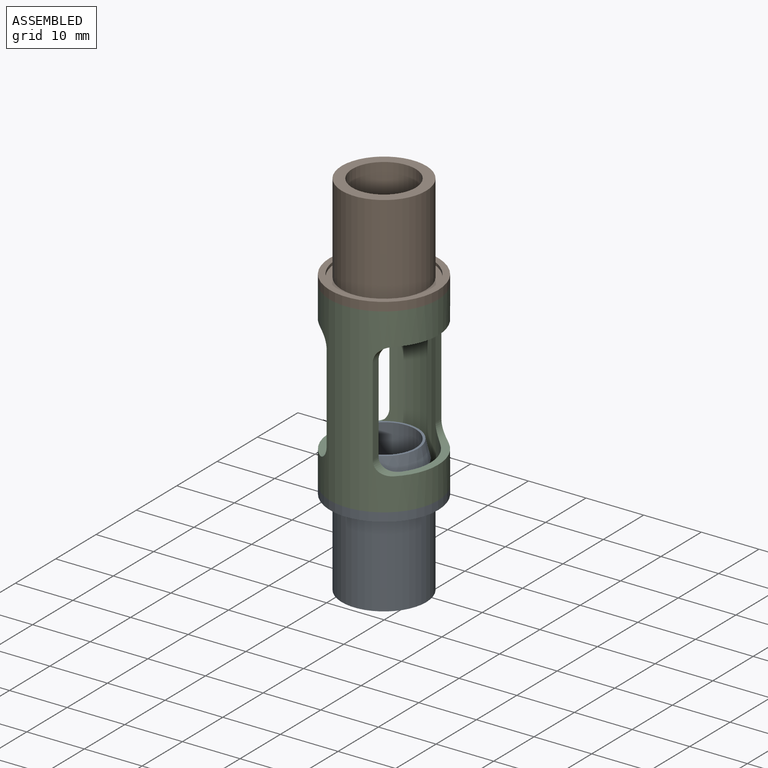
[diagram: assembled view]
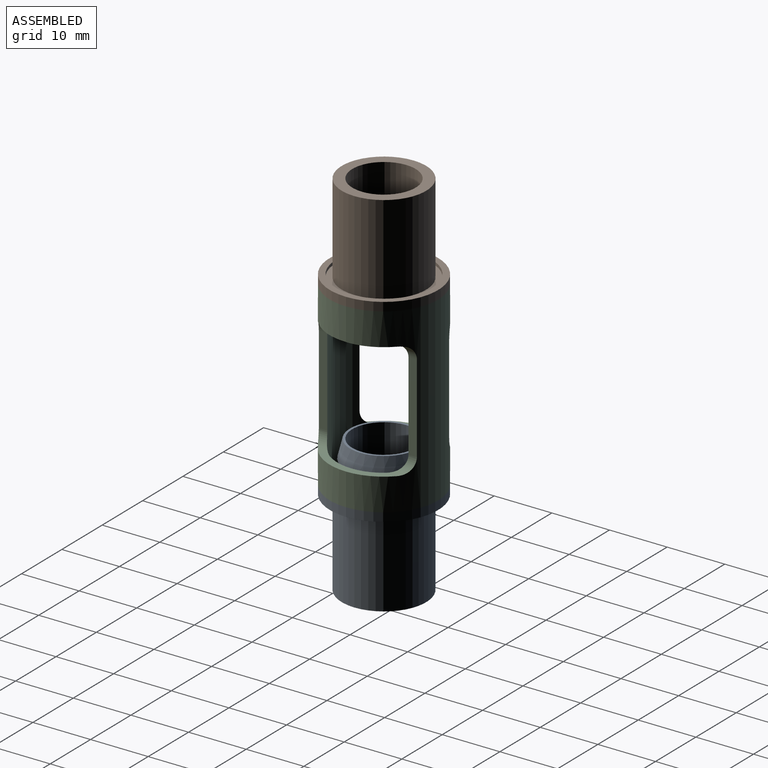
[diagram: assembled view, second angle]
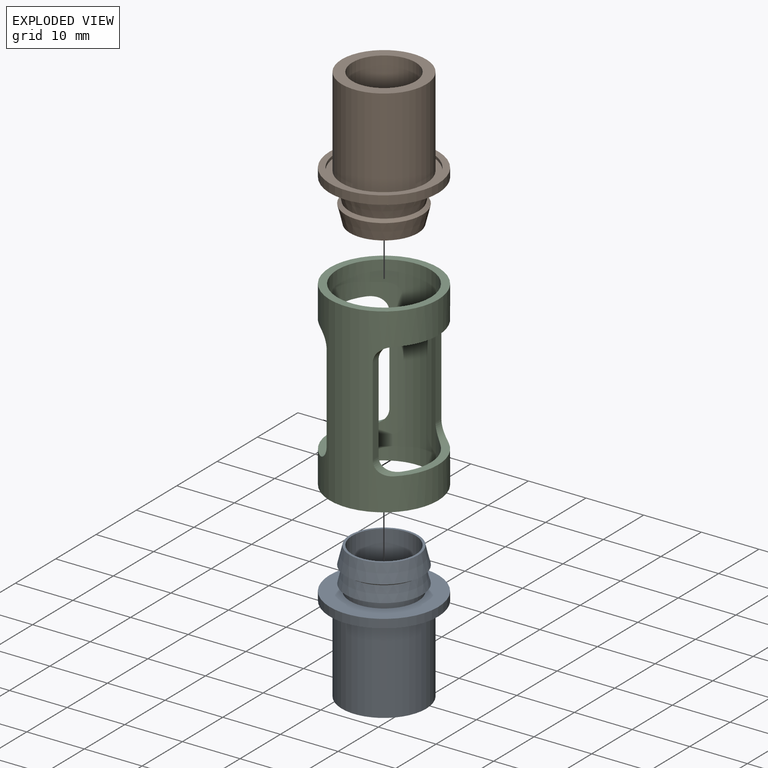
[diagram: exploded view]
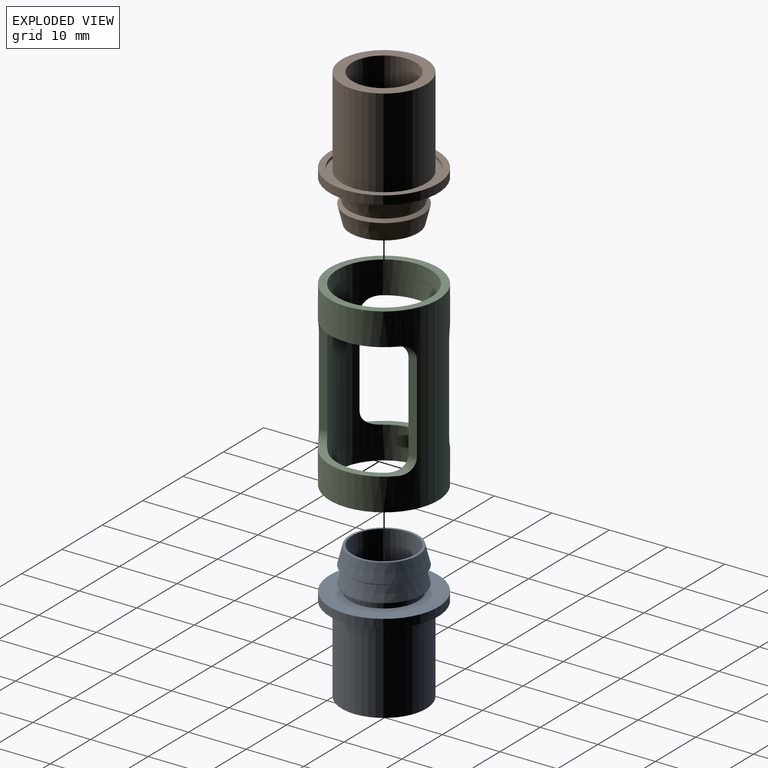
[diagram: exploded view, second angle]
ASSEMBLY  parts=3 mates=2
PART A: 14 faces, bbox 18.8x18.8x23.7 mm
  f0: plane 11.8x11.8mm, normal (0,0,1), area 14.3mm2, adj f2,f5
  f1: plane 14.65x14.65mm, normal (0,0,-1), area 73.5mm2, adj f2,f4
  f2: cylinder r=5.5mm len=23.7mm, axis (0,0,-1), area 819mm2, adj f0,f1
  f3: plane 18.8x18.8mm, normal (0,0,-1), area 59.9mm2, adj f9,f12
  f4: cylinder r=7.33mm len=15.5mm, axis (0,0,1), area 713.4mm2, adj f1,f13
  f5: cone r=5.9mm half-angle=14deg, axis (0,0,-1), area 125.4mm2, adj f0,f11
  f6: cone r=5.9mm half-angle=14deg, axis (0,0,-1), area 103.9mm2, adj f10,f11
  f7: cylinder r=5.9mm len=11.8mm, axis (0,0,1), area 33.7mm2, adj f8,f10
  f8: plane 18.8x18.8mm, normal (0,0,1), area 168.2mm2, adj f7,f9
  f9: cylinder r=9.4mm len=18.8mm, axis (0,0,-1), area 88.6mm2, adj f3,f8
  f10: cone r=6.7mm half-angle=70.1deg, axis (0,0,1), area 31.6mm2, adj f6,f7
  f11: cone r=6.8mm half-angle=58.1deg, axis (0,0,1), area 30.5mm2, adj f5,f6
  f12: cylinder r=8.33mm len=16.65mm, axis (0,0,-1), area 26.2mm2, adj f3,f13
  f13: plane 16.65x16.65mm, normal (0,0,-1), area 49.2mm2, adj f4,f12
PART B: same geometry as A
PART C: 20 faces, bbox 18.8x18.8x31.5 mm
  f0: cylinder r=8.1mm len=31.5mm, axis (0,0,-1), area 922.8mm2, adj f2,f3,f4,f5,f6,f7,f8,f9
  f1: cylinder r=9.4mm len=31.5mm, axis (0,0,-1), area 1009.3mm2, adj f2,f3,f4,f5,f6,f7,f8,f9
  f2: plane 18.8x18.8mm, normal (0,0,1), area 71.5mm2, adj f0,f1
  f3: plane 18.8x18.8mm, normal (0,0,-1), area 71.5mm2, adj f0,f1
  f4: plane 15.3x1.46mm, normal (1,0,0), area 22.4mm2, adj f0,f1,f14,f15
  f5: plane 15.3x1.46mm, normal (1,0,0), area 22.4mm2, adj f0,f1,f16,f17
  f6: plane 13.58x2.9mm, normal (0,0,1), area 16.7mm2, adj f0,f1,f14,f16
  f7: plane 13.58x2.9mm, normal (0,0,-1), area 16.7mm2, adj f0,f1,f15,f17
  f8: plane 13.58x2.9mm, normal (0,0,1), area 16.7mm2, adj f0,f1,f12,f18
  f9: plane 15.3x1.46mm, normal (-1,0,0), area 22.4mm2, adj f0,f1,f12,f13
  f10: plane 15.3x1.46mm, normal (-1,0,0), area 22.4mm2, adj f0,f1,f18,f19
  f11: plane 13.58x2.9mm, normal (0,0,-1), area 16.7mm2, adj f0,f1,f13,f19
  f12: cylinder r=2.5mm len=3.67mm, axis (0,1,0), area 6.3mm2, adj f0,f1,f8,f9
  f13: cylinder r=2.5mm len=3.67mm, axis (0,-1,0), area 6.3mm2, adj f0,f1,f9,f11
  f14: cylinder r=2.5mm len=3.67mm, axis (0,1,0), area 6.3mm2, adj f0,f1,f4,f6
  f15: cylinder r=2.5mm len=3.67mm, axis (0,-1,0), area 6.3mm2, adj f0,f1,f4,f7
  f16: cylinder r=2.5mm len=3.67mm, axis (0,1,0), area 6.3mm2, adj f0,f1,f5,f6
  f17: cylinder r=2.5mm len=3.67mm, axis (0,-1,0), area 6.3mm2, adj f0,f1,f5,f7
  f18: cylinder r=2.5mm len=3.67mm, axis (0,1,0), area 6.3mm2, adj f0,f1,f8,f10
  f19: cylinder r=2.5mm len=3.67mm, axis (0,-1,0), area 6.3mm2, adj f0,f1,f10,f11
PLACE A t=(16,7.11,-3.2)mm
PLACE B rot(axis=(0,-1,0),180deg) t=(16,7.11,61.3)mm
PLACE C t=(16,7.11,13.3)mm
MATE fastened C.f1 <-> B.f4  axis (0,0,1) through (16,7.11,44.8)mm
MATE fastened C.f1 <-> A.f4  axis (0,0,-1) through (16,7.11,13.3)mm
